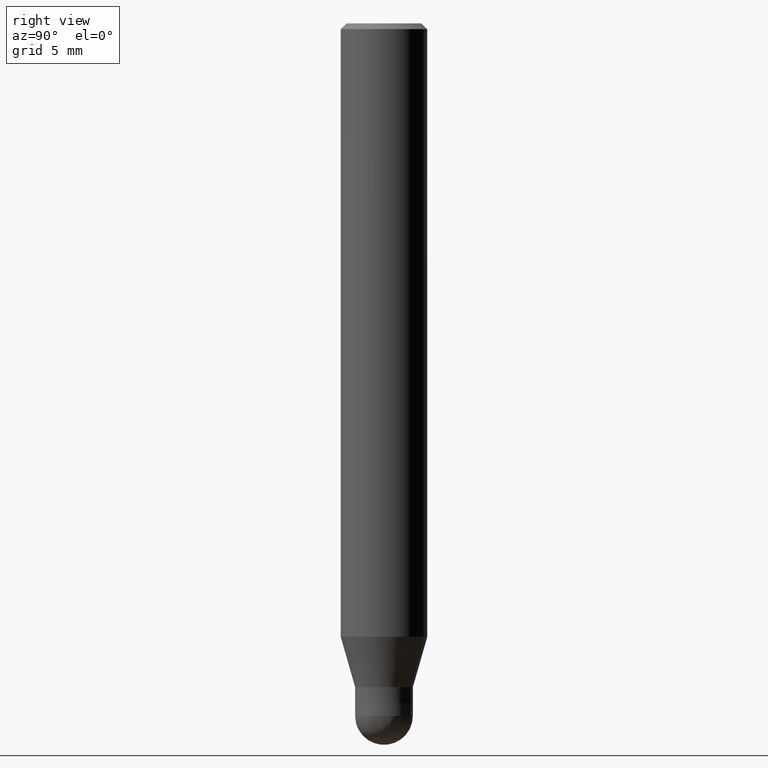
[diagram: clean part render]
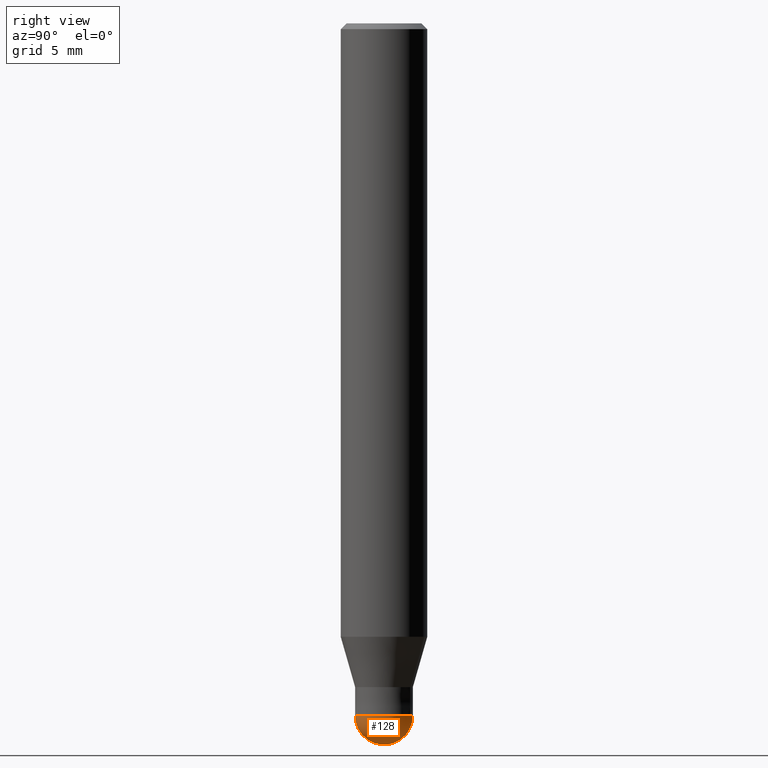
[diagram: same view with one face highlighted and labeled with its STEP entity id]
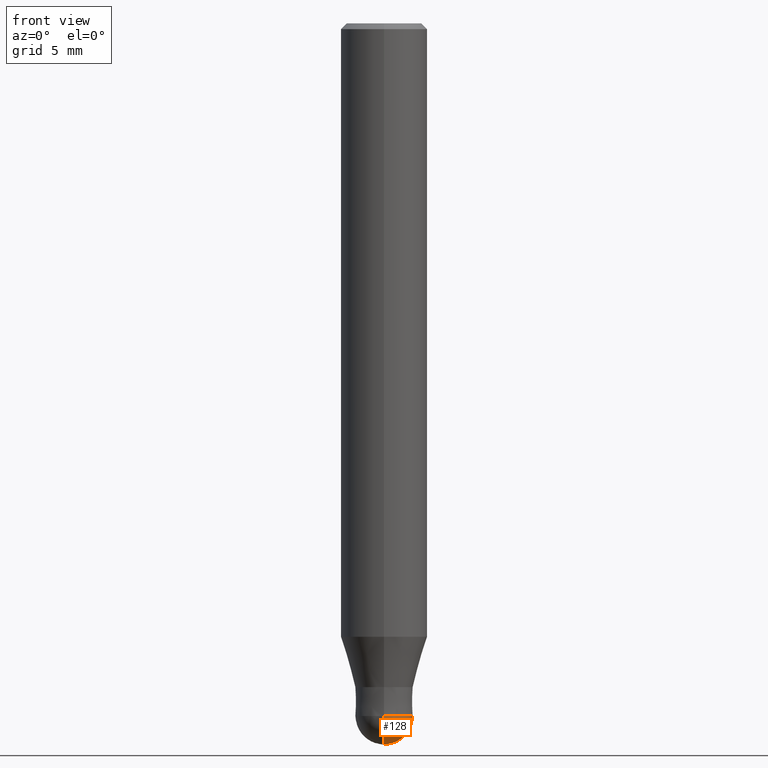
[diagram: same view with one face highlighted and labeled with its STEP entity id]
A machine part, right view. The second image highlights one B-rep face of the part: STEP entity #128.
A second angle (front view) of the same face is appended — the face is thin or edge-on in the first view.
In plain terms, the highlighted spherical surface has radius 2 mm.
Its self-contained STEP definition (entity closure, byte-faithful):
#96=EDGE_CURVE('',#106,#130,#222,.T.);
#106=VERTEX_POINT('',#233);
#128=ADVANCED_FACE('',(#258),#259,.T.);
#130=VERTEX_POINT('',#261);
#166=EDGE_CURVE('',#130,#106,#302,.T.);
#222=CIRCLE('',#359,2.0);
#233=CARTESIAN_POINT('',(0.0,2.0,-48.0));
#258=FACE_OUTER_BOUND('',#404,.T.);
#259=SPHERICAL_SURFACE('',#405,2.0);
#261=CARTESIAN_POINT('',(2.44921270764476E-016,-2.0,-48.0));
#302=CIRCLE('',#454,2.0);
#359=AXIS2_PLACEMENT_3D('',#501,#502,#503);
#404=EDGE_LOOP('',(#543,#544));
#405=AXIS2_PLACEMENT_3D('',#545,#546,#547);
#454=AXIS2_PLACEMENT_3D('',#600,#601,#602);
#501=CARTESIAN_POINT('',(0.0,0.0,-48.0));
#502=DIRECTION('',(0.0,0.0,-1.0));
#503=DIRECTION('',(0.0,1.0,0.0));
#543=ORIENTED_EDGE('',*,*,#166,.T.);
#544=ORIENTED_EDGE('',*,*,#96,.T.);
#545=CARTESIAN_POINT('',(0.0,0.0,-48.0));
#546=DIRECTION('',(0.0,1.0,0.0));
#547=DIRECTION('',(0.0,0.0,-1.0));
#600=CARTESIAN_POINT('',(0.0,0.0,-48.0));
#601=DIRECTION('',(1.0,0.0,1.22460635382238E-016));
#602=DIRECTION('',(-1.22460635382238E-016,0.0,1.0));